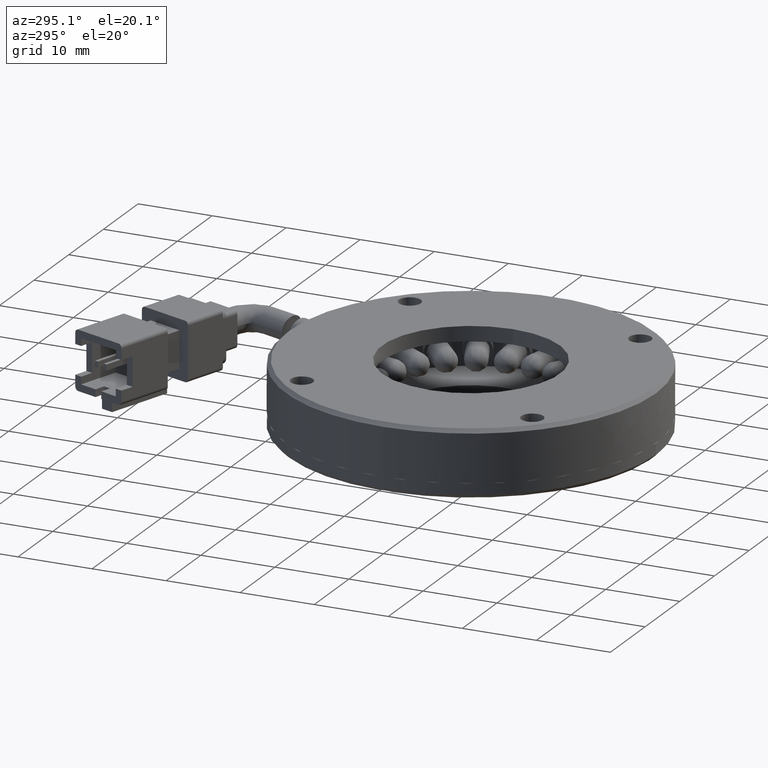
[diagram: clean part render]
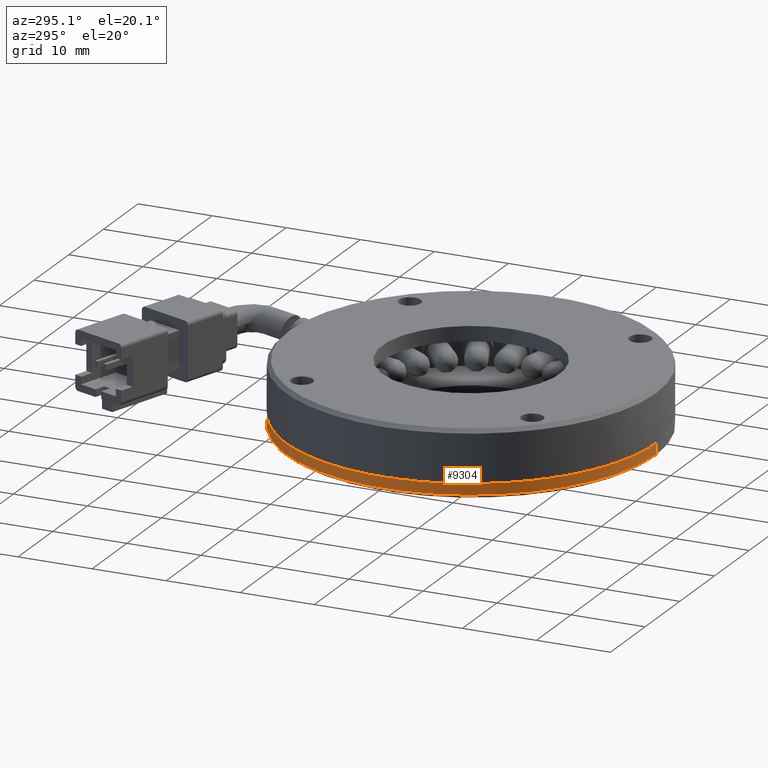
[diagram: same view with one face highlighted and labeled with its STEP entity id]
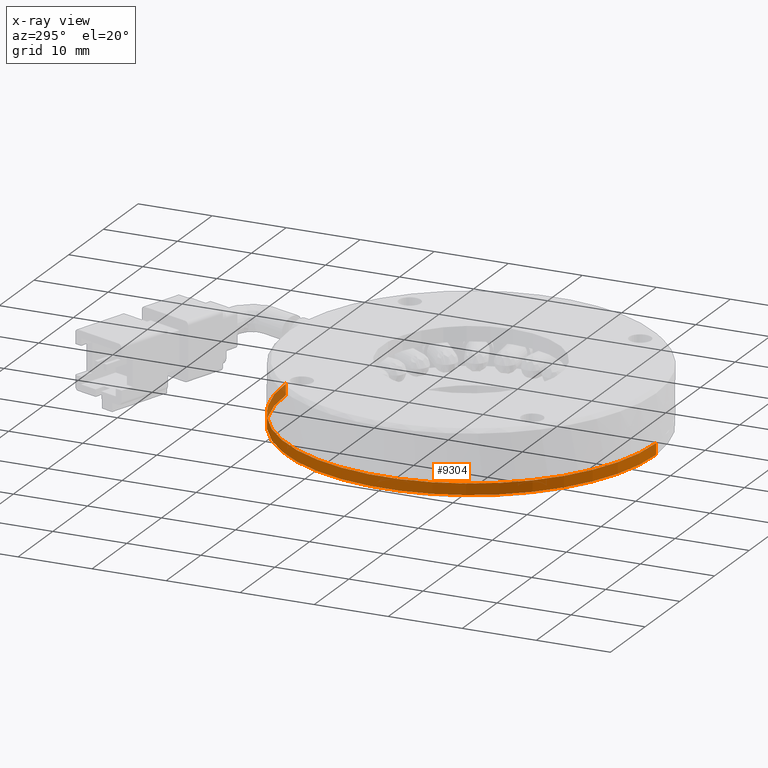
[diagram: x-ray of the same camera — body ghosted, the highlighted face saturated]
A machine part, auxiliary view. The second image highlights one B-rep face of the part: STEP entity #9304.
The next image is the same camera in x-ray: the body ghosted, the highlighted face saturated — about 4% of this face is hidden behind the body in this view.
In plain terms, the highlighted cylindrical surface (partial cylindrical patch) has radius 25 mm, axis along (0, -0, 1).
Its self-contained STEP definition (entity closure, byte-faithful):
#1533 = CARTESIAN_POINT ( 'NONE',  ( -121.0083944312394000, 31.46072502546472900, -4.999999999999938700 ) ) ;
#2577 = CARTESIAN_POINT ( 'NONE',  ( -121.0083944312394000, 31.46072502546472900, -3.499999999999940500 ) ) ;
#3184 = ORIENTED_EDGE ( 'NONE', *, *, #4256, .F. ) ;
#3375 = DIRECTION ( 'NONE',  ( 1.278084676573917700E-047, -0.0000000000000000000, 1.000000000000000000 ) ) ;
#4085 = CARTESIAN_POINT ( 'NONE',  ( -121.0083944312394000, 31.46072502546472900, -5.499999999999940500 ) ) ;
#4150 = EDGE_CURVE ( 'NONE', #8919, #11354, #8638, .T. ) ;
#4256 = EDGE_CURVE ( 'NONE', #6873, #11354, #12443, .T. ) ;
#5033 = ORIENTED_EDGE ( 'NONE', *, *, #8237, .T. ) ;
#5416 = CARTESIAN_POINT ( 'NONE',  ( -121.0083944312394000, -18.53927497453527500, -5.499999999999940500 ) ) ;
#6128 = DIRECTION ( 'NONE',  ( 0.0000000000000000000, -1.000000000000000000, 0.0000000000000000000 ) ) ;
#6873 = VERTEX_POINT ( 'NONE', #1533 ) ;
#8236 = AXIS2_PLACEMENT_3D ( 'NONE', #24383, #10122, #6128 ) ;
#8237 = EDGE_CURVE ( 'NONE', #22606, #8919, #16062, .T. ) ;
#8638 = CIRCLE ( 'NONE', #10253, 25.00000000000000000 ) ;
#8919 = VERTEX_POINT ( 'NONE', #24743 ) ;
#9304 = ADVANCED_FACE ( 'NONE', ( #25127 ), #17827, .T. ) ;
#9893 = DIRECTION ( 'NONE',  ( -1.278084676573917400E-047, 0.0000000000000000000, -1.000000000000000000 ) ) ;
#10122 = DIRECTION ( 'NONE',  ( 1.278084676573917400E-047, -0.0000000000000000000, 1.000000000000000000 ) ) ;
#10253 = AXIS2_PLACEMENT_3D ( 'NONE', #22134, #9893, #24146 ) ;
#11354 = VERTEX_POINT ( 'NONE', #2577 ) ;
#11800 = VECTOR ( 'NONE', #16231, 1000.000000000000000 ) ;
#11949 = CARTESIAN_POINT ( 'NONE',  ( -121.0083944312394000, 6.460725025464729900, -4.999999999999938700 ) ) ;
#12443 = LINE ( 'NONE', #4085, #11800 ) ;
#13696 = CIRCLE ( 'NONE', #25687, 25.00000000000000000 ) ;
#14020 = DIRECTION ( 'NONE',  ( 0.0000000000000000000, -1.000000000000000000, 6.938893903907228400E-017 ) ) ;
#16062 = LINE ( 'NONE', #5416, #20825 ) ;
#16149 = EDGE_LOOP ( 'NONE', ( #3184, #19660, #5033, #17680 ) ) ;
#16231 = DIRECTION ( 'NONE',  ( 1.278084676573917700E-047, -0.0000000000000000000, 1.000000000000000000 ) ) ;
#17680 = ORIENTED_EDGE ( 'NONE', *, *, #4150, .T. ) ;
#17827 = CYLINDRICAL_SURFACE ( 'NONE', #8236, 25.00000000000000000 ) ;
#18831 = EDGE_CURVE ( 'NONE', #22606, #6873, #13696, .T. ) ;
#19660 = ORIENTED_EDGE ( 'NONE', *, *, #18831, .F. ) ;
#20825 = VECTOR ( 'NONE', #3375, 1000.000000000000000 ) ;
#22134 = CARTESIAN_POINT ( 'NONE',  ( -121.0083944312394000, 6.460725025464729900, -3.499999999999940500 ) ) ;
#22606 = VERTEX_POINT ( 'NONE', #24969 ) ;
#24146 = DIRECTION ( 'NONE',  ( 0.0000000000000000000, -1.000000000000000000, 0.0000000000000000000 ) ) ;
#24383 = CARTESIAN_POINT ( 'NONE',  ( -121.0083944312394000, 6.460725025464729900, -5.499999999999940500 ) ) ;
#24743 = CARTESIAN_POINT ( 'NONE',  ( -121.0083944312394000, -18.53927497453527500, -3.499999999999940500 ) ) ;
#24969 = CARTESIAN_POINT ( 'NONE',  ( -121.0083944312394000, -18.53927497453527500, -4.999999999999936900 ) ) ;
#25127 = FACE_OUTER_BOUND ( 'NONE', #16149, .T. ) ;
#25687 = AXIS2_PLACEMENT_3D ( 'NONE', #11949, #26173, #14020 ) ;
#26173 = DIRECTION ( 'NONE',  ( -1.278084676573917400E-047, -0.0000000000000000000, -1.000000000000000000 ) ) ;